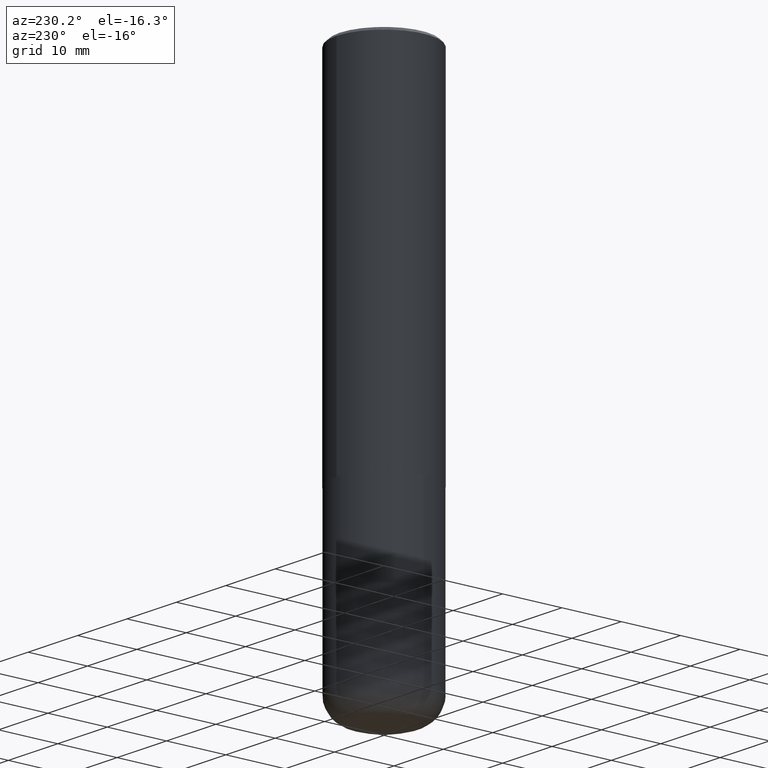
[diagram: clean part render]
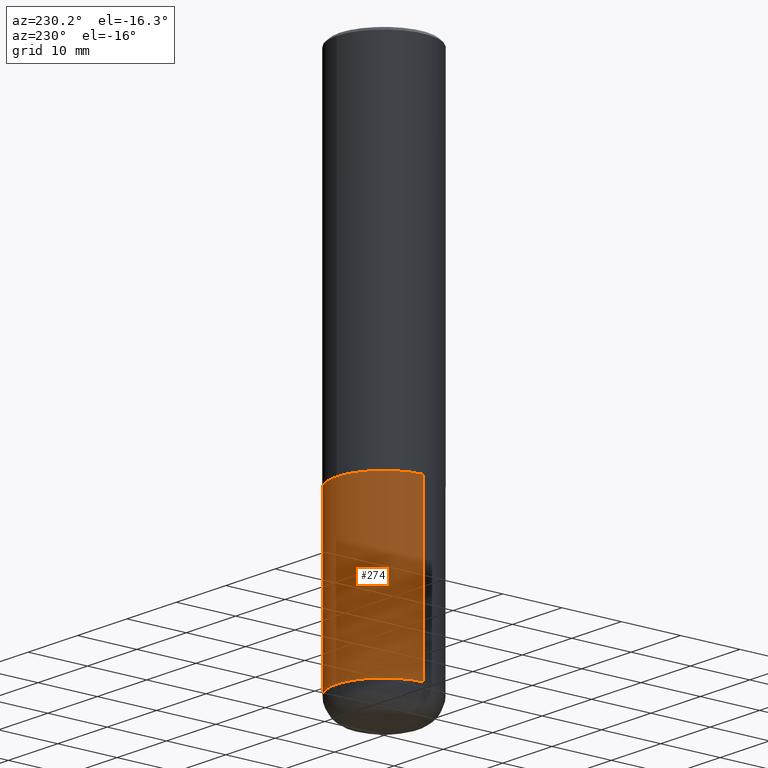
[diagram: same view with one face highlighted and labeled with its STEP entity id]
A machine part, auxiliary view. The second image highlights one B-rep face of the part: STEP entity #274.
In plain terms, the highlighted cylindrical surface (partial cylindrical patch) has radius 7.9997 mm, axis along (-0, 0, 1).
Its self-contained STEP definition (entity closure, byte-faithful):
#9 = VERTEX_POINT ( 'NONE', #117 ) ;
#11 = ORIENTED_EDGE ( 'NONE', *, *, #155, .T. ) ;
#46 = AXIS2_PLACEMENT_3D ( 'NONE', #59, #303, #194 ) ;
#51 = VERTEX_POINT ( 'NONE', #183 ) ;
#57 = DIRECTION ( 'NONE',  ( -2.445468806185136597E-29, 3.491481338843145583E-15, 1.000000000000000000 ) ) ;
#59 = CARTESIAN_POINT ( 'NONE',  ( 5.776686413970529753E-29, -8.247577218615278049E-15, -2.362199999999999633 ) ) ;
#64 = CIRCLE ( 'NONE', #399, 0.3149500000000000077 ) ;
#67 = CARTESIAN_POINT ( 'NONE',  ( 0.3149499999999999522, -1.429552119375937009E-14, -3.464500000000000135 ) ) ;
#77 = LINE ( 'NONE', #104, #385 ) ;
#83 = EDGE_CURVE ( 'NONE', #207, #51, #305, .T. ) ;
#97 = AXIS2_PLACEMENT_3D ( 'NONE', #330, #57, #121 ) ;
#104 = CARTESIAN_POINT ( 'NONE',  ( -0.3149500000000000077, 2.237854346276435590E-15, -1.549218606675782676E-29 ) ) ;
#112 = DIRECTION ( 'NONE',  ( -2.445468806185136597E-29, 3.491481338843145583E-15, 1.000000000000000000 ) ) ;
#117 = CARTESIAN_POINT ( 'NONE',  ( -0.3149499999999999522, -9.858382752145642660E-15, -3.464500000000000135 ) ) ;
#121 = DIRECTION ( 'NONE',  ( 1.000000000000000000, -6.982962677686266711E-15, 4.876176775795936353E-29 ) ) ;
#154 = VERTEX_POINT ( 'NONE', #67 ) ;
#155 = EDGE_CURVE ( 'NONE', #9, #51, #77, .T. ) ;
#183 = CARTESIAN_POINT ( 'NONE',  ( -0.3149500000000000077, -7.934052812242242362E-15, -2.362199999999999633 ) ) ;
#194 = DIRECTION ( 'NONE',  ( 1.000000000000000000, -6.982962677686266711E-15, 0.000000000000000000 ) ) ;
#196 = LINE ( 'NONE', #353, #350 ) ;
#203 = EDGE_CURVE ( 'NONE', #154, #9, #64, .T. ) ;
#207 = VERTEX_POINT ( 'NONE', #392 ) ;
#211 = EDGE_CURVE ( 'NONE', #154, #207, #196, .T. ) ;
#242 = ORIENTED_EDGE ( 'NONE', *, *, #83, .F. ) ;
#265 = DIRECTION ( 'NONE',  ( -2.445468806185136877E-29, 3.491481338843145188E-15, 1.000000000000000000 ) ) ;
#274 = ADVANCED_FACE ( 'NONE', ( #278 ), #367, .T. ) ;
#278 = FACE_OUTER_BOUND ( 'NONE', #368, .T. ) ;
#282 = DIRECTION ( 'NONE',  ( -2.445468806185136877E-29, 3.491481338843145188E-15, 1.000000000000000000 ) ) ;
#303 = DIRECTION ( 'NONE',  ( -2.445468806185136597E-29, 3.491481338843145583E-15, 1.000000000000000000 ) ) ;
#305 = CIRCLE ( 'NONE', #46, 0.3149500000000000077 ) ;
#330 = CARTESIAN_POINT ( 'NONE',  ( 0.000000000000000000, 0.000000000000000000, 0.000000000000000000 ) ) ;
#339 = ORIENTED_EDGE ( 'NONE', *, *, #211, .F. ) ;
#346 = DIRECTION ( 'NONE',  ( 1.000000000000000000, -6.982962677686269866E-15, 0.000000000000000000 ) ) ;
#350 = VECTOR ( 'NONE', #282, 39.37007874015748143 ) ;
#353 = CARTESIAN_POINT ( 'NONE',  ( 0.3149500000000000077, -2.199284095337289871E-15, 1.535751875536930130E-29 ) ) ;
#367 = CYLINDRICAL_SURFACE ( 'NONE', #97, 0.3149500000000000077 ) ;
#368 = EDGE_LOOP ( 'NONE', ( #398, #11, #242, #339 ) ) ;
#385 = VECTOR ( 'NONE', #265, 39.37007874015748143 ) ;
#392 = CARTESIAN_POINT ( 'NONE',  ( 0.3149500000000000077, -1.044686131395256792E-14, -2.362199999999999633 ) ) ;
#395 = CARTESIAN_POINT ( 'NONE',  ( 8.472326679028406000E-29, -1.209623709842207864E-14, -3.464500000000000135 ) ) ;
#398 = ORIENTED_EDGE ( 'NONE', *, *, #203, .T. ) ;
#399 = AXIS2_PLACEMENT_3D ( 'NONE', #395, #112, #346 ) ;